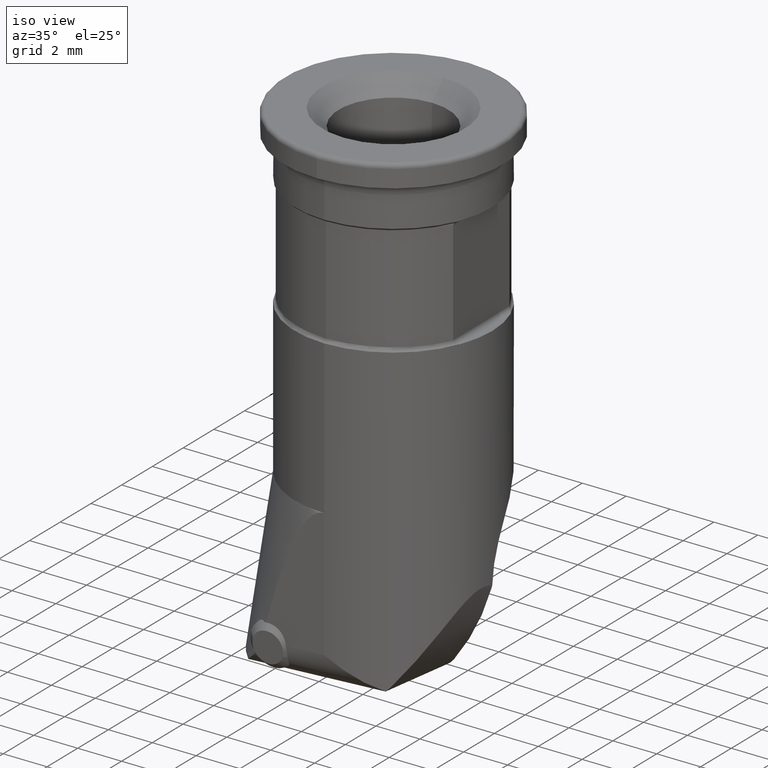
[diagram: clean part render]
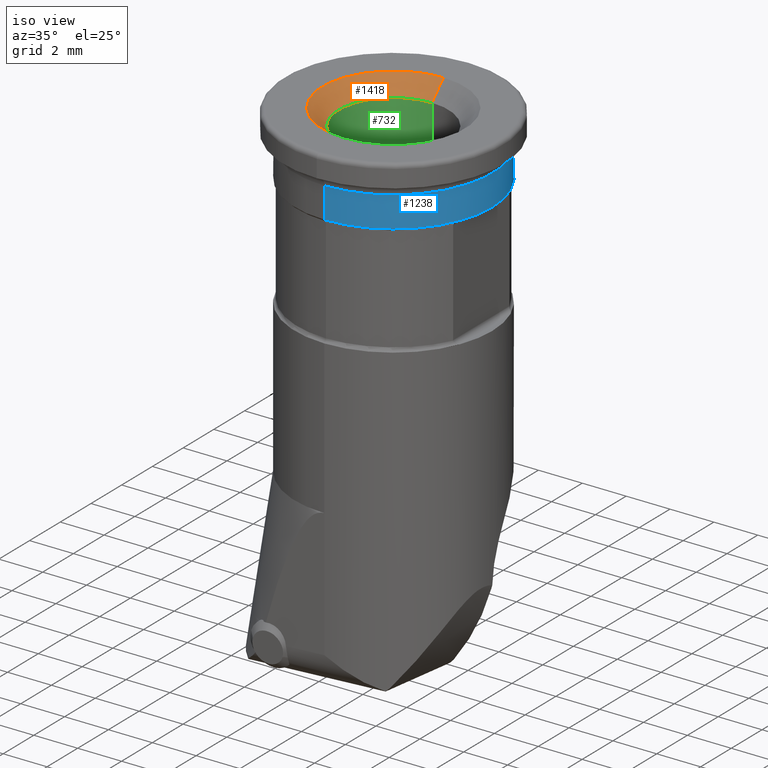
[diagram: same view with three faces highlighted in distinct colors, each labeled with its STEP entity id]
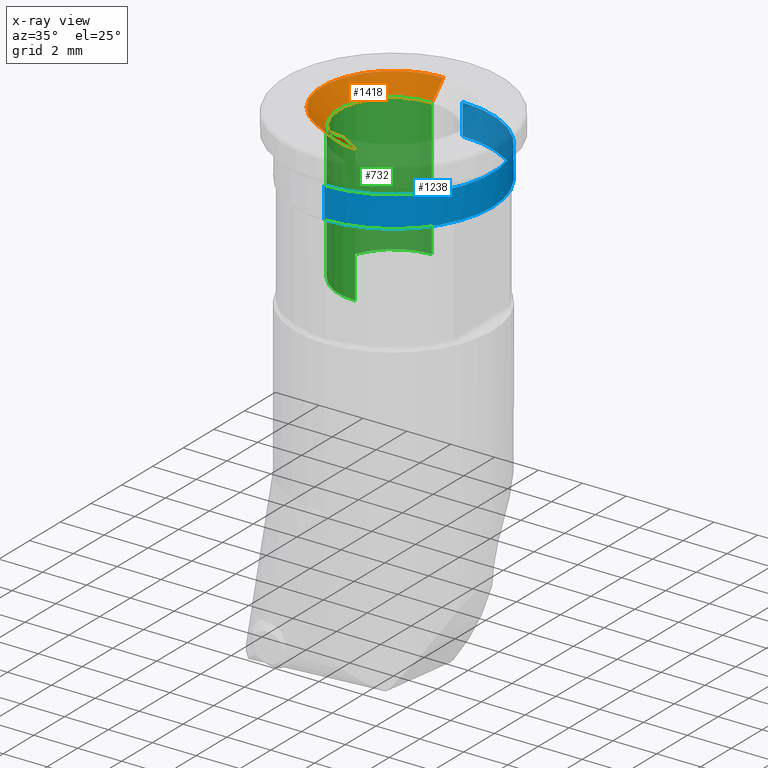
[diagram: x-ray of the same camera — body ghosted, the three highlighted faces saturated]
A machine part, iso view with three faces highlighted in distinct colors.
The next image is the same camera in x-ray (body ghosted, the three faces saturated) — at least one of them is partly hidden behind the body in this view.
Their STEP definitions:

[orange] entity #1418 — the highlighted conical surface has half-angle 45 deg.
#694=VERTEX_POINT('NONE',#1948);
#888=VERTEX_POINT('NONE',#2165);
#1174=EDGE_CURVE('NONE',#1772,#694,#2480,.T.);
#1384=EDGE_CURVE('NONE',#1772,#888,#2711,.T.);
#1418=ADVANCED_FACE('NONE',(#2748),#2749,.F.);
#1460=EDGE_CURVE('NONE',#1804,#888,#2794,.T.);
#1772=VERTEX_POINT('NONE',#3143);
#1776=EDGE_CURVE('NONE',#694,#1804,#3148,.T.);
#1804=VERTEX_POINT('NONE',#3181);
#1948=CARTESIAN_POINT('',(0.0,-2.5,-0.749999999999997));
#2165=CARTESIAN_POINT('',(3.9801020972289E-016,3.25,0.0));
#2480=CIRCLE('',#5001,2.5);
#2711=LINE('',#5447,#5448);
#2748=FACE_OUTER_BOUND('',#5582,.T.);
#2749=CONICAL_SURFACE('',#5583,2.5,0.78539816339745);
#2794=CIRCLE('',#5641,3.25);
#3143=CARTESIAN_POINT('',(3.52085954754864E-016,2.5,-0.749999999999997));
#3148=LINE('',#6410,#6411);
#3181=CARTESIAN_POINT('',(0.0,-3.25,0.0));
#5001=AXIS2_PLACEMENT_3D('',#7257,#7258,#7259);
#5447=CARTESIAN_POINT('',(3.06161699786838E-016,2.5,-0.749999999999997));
#5448=VECTOR('',#7527,1000.0);
#5582=EDGE_LOOP('',(#7573,#7574,#7575,#7576));
#5583=AXIS2_PLACEMENT_3D('',#7577,#7578,#7579);
#5641=AXIS2_PLACEMENT_3D('',#7621,#7622,#7623);
#6410=CARTESIAN_POINT('',(0.0,-2.5,-0.749999999999997));
#6411=VECTOR('',#8082,1000.0);
#7257=CARTESIAN_POINT('',(0.0,0.0,-0.749999999999997));
#7258=DIRECTION('',(-0.0,0.0,1.0));
#7259=DIRECTION('',(0.0,-1.0,0.0));
#7527=DIRECTION('',(8.65956056235495E-017,0.707106781186549,0.707106781186546));
#7573=ORIENTED_EDGE('',*,*,#1174,.F.);
#7574=ORIENTED_EDGE('',*,*,#1384,.T.);
#7575=ORIENTED_EDGE('',*,*,#1460,.F.);
#7576=ORIENTED_EDGE('',*,*,#1776,.F.);
#7577=CARTESIAN_POINT('',(0.0,0.0,-0.749999999999997));
#7578=DIRECTION('',(-0.0,-0.0,1.0));
#7579=DIRECTION('',(0.0,-1.0,0.0));
#7621=CARTESIAN_POINT('',(0.0,0.0,0.0));
#7622=DIRECTION('',(0.0,0.0,-1.0));
#7623=DIRECTION('',(0.0,-1.0,0.0));
#8082=DIRECTION('',(0.0,-0.707106781186549,0.707106781186546));

[blue] entity #1238 — the highlighted cylindrical surface (partial cylindrical patch) has radius 4.5 mm, axis along (-0, -0, 1).
#712=VERTEX_POINT('NONE',#1969);
#874=VERTEX_POINT('NONE',#2151);
#956=VERTEX_POINT('NONE',#2240);
#1140=EDGE_CURVE('NONE',#1284,#712,#2443,.T.);
#1160=EDGE_CURVE('NONE',#712,#874,#2465,.T.);
#1176=EDGE_CURVE('NONE',#874,#1286,#2482,.T.);
#1238=ADVANCED_FACE('NONE',(#2552),#2553,.T.);
#1274=EDGE_CURVE('NONE',#1412,#1284,#2590,.F.);
#1284=VERTEX_POINT('NONE',#2600);
#1286=VERTEX_POINT('NONE',#2602);
#1368=EDGE_CURVE('NONE',#956,#1286,#2691,.T.);
#1410=EDGE_CURVE('NONE',#956,#1412,#2739,.T.);
#1412=VERTEX_POINT('NONE',#2741);
#1969=CARTESIAN_POINT('',(5.51091059616309E-016,4.5,-2.9));
#2151=CARTESIAN_POINT('',(5.51091059616309E-016,4.5,-1.5));
#2240=CARTESIAN_POINT('',(0.0,-4.5,-2.9));
#2443=CIRCLE('',#4950,4.5);
#2465=LINE('',#4981,#4982);
#2482=CIRCLE('',#5004,4.5);
#2552=FACE_OUTER_BOUND('',#5124,.T.);
#2553=CYLINDRICAL_SURFACE('',#5125,4.5);
#2590=CIRCLE('',#5201,4.5);
#2600=CARTESIAN_POINT('',(4.2,1.61554944214035,-2.9));
#2602=CARTESIAN_POINT('',(0.0,-4.5,-1.5));
#2691=LINE('',#5388,#5389);
#2739=CIRCLE('',#5573,4.5);
#2741=CARTESIAN_POINT('',(4.2,-1.61554944214035,-2.9));
#4950=AXIS2_PLACEMENT_3D('',#7209,#7210,#7211);
#4981=CARTESIAN_POINT('',(5.51091059616309E-016,4.5,3.67315689981097));
#4982=VECTOR('',#7236,1000.0);
#5004=AXIS2_PLACEMENT_3D('',#7260,#7261,#7262);
#5124=EDGE_LOOP('',(#7364,#7365,#7366,#7367,#7368,#7369));
#5125=AXIS2_PLACEMENT_3D('',#7370,#7371,#7372);
#5201=AXIS2_PLACEMENT_3D('',#7394,#7395,#7396);
#5388=CARTESIAN_POINT('',(0.0,-4.5,3.67315689981097));
#5389=VECTOR('',#7497,1000.0);
#5573=AXIS2_PLACEMENT_3D('',#7561,#7562,#7563);
#7209=CARTESIAN_POINT('',(0.0,0.0,-2.9));
#7210=DIRECTION('',(-0.0,0.0,1.0));
#7211=DIRECTION('',(0.0,-1.0,0.0));
#7236=DIRECTION('',(-0.0,0.0,1.0));
#7260=CARTESIAN_POINT('',(0.0,0.0,-1.5));
#7261=DIRECTION('',(0.0,0.0,-1.0));
#7262=DIRECTION('',(0.0,-1.0,0.0));
#7364=ORIENTED_EDGE('',*,*,#1140,.T.);
#7365=ORIENTED_EDGE('',*,*,#1160,.T.);
#7366=ORIENTED_EDGE('',*,*,#1176,.T.);
#7367=ORIENTED_EDGE('',*,*,#1368,.F.);
#7368=ORIENTED_EDGE('',*,*,#1410,.T.);
#7369=ORIENTED_EDGE('',*,*,#1274,.T.);
#7370=CARTESIAN_POINT('',(0.0,0.0,3.67315689981097));
#7371=DIRECTION('',(-0.0,-0.0,1.0));
#7372=DIRECTION('',(0.0,-1.0,0.0));
#7394=CARTESIAN_POINT('',(0.0,0.0,-2.9));
#7395=DIRECTION('',(0.0,0.0,-1.0));
#7396=DIRECTION('',(0.0,-1.0,0.0));
#7497=DIRECTION('',(-0.0,0.0,1.0));
#7561=CARTESIAN_POINT('',(0.0,0.0,-2.9));
#7562=DIRECTION('',(-0.0,0.0,1.0));
#7563=DIRECTION('',(0.0,-1.0,0.0));

[green] entity #732 — the highlighted cylindrical surface (partial cylindrical patch) has radius 2.5 mm, axis along (-0, -0, 1).
#694=VERTEX_POINT('NONE',#1948);
#732=ADVANCED_FACE('NONE',(#1992),#1993,.F.);
#972=EDGE_CURVE('NONE',#1420,#694,#2257,.T.);
#1008=EDGE_CURVE('NONE',#1222,#1420,#2294,.T.);
#1174=EDGE_CURVE('NONE',#1772,#694,#2480,.T.);
#1222=VERTEX_POINT('NONE',#2531);
#1288=EDGE_CURVE('NONE',#1222,#1772,#2604,.T.);
#1420=VERTEX_POINT('NONE',#2751);
#1772=VERTEX_POINT('NONE',#3143);
#1948=CARTESIAN_POINT('',(0.0,-2.5,-0.749999999999997));
#1992=FACE_OUTER_BOUND('',#3435,.T.);
#1993=CYLINDRICAL_SURFACE('',#3436,2.5);
#2257=LINE('',#4374,#4375);
#2294=CIRCLE('',#4453,2.5);
#2480=CIRCLE('',#5001,2.5);
#2531=CARTESIAN_POINT('',(3.06161699786838E-016,2.5,-7.0));
#2604=LINE('',#5217,#5218);
#2751=CARTESIAN_POINT('',(0.0,-2.5,-7.0));
#3143=CARTESIAN_POINT('',(3.52085954754864E-016,2.5,-0.749999999999997));
#3435=EDGE_LOOP('',(#6696,#6697,#6698,#6699));
#3436=AXIS2_PLACEMENT_3D('',#6700,#6701,#6702);
#4374=CARTESIAN_POINT('',(0.0,-2.5,2.046307376532));
#4375=VECTOR('',#6998,1000.0);
#4453=AXIS2_PLACEMENT_3D('',#7024,#7025,#7026);
#5001=AXIS2_PLACEMENT_3D('',#7257,#7258,#7259);
#5217=CARTESIAN_POINT('',(3.06161699786838E-016,2.5,2.046307376532));
#5218=VECTOR('',#7399,1000.0);
#6696=ORIENTED_EDGE('',*,*,#1008,.F.);
#6697=ORIENTED_EDGE('',*,*,#1288,.T.);
#6698=ORIENTED_EDGE('',*,*,#1174,.T.);
#6699=ORIENTED_EDGE('',*,*,#972,.F.);
#6700=CARTESIAN_POINT('',(0.0,0.0,2.046307376532));
#6701=DIRECTION('',(-0.0,-0.0,1.0));
#6702=DIRECTION('',(0.0,-1.0,0.0));
#6998=DIRECTION('',(-0.0,0.0,1.0));
#7024=CARTESIAN_POINT('',(0.0,0.0,-7.0));
#7025=DIRECTION('',(-0.0,0.0,1.0));
#7026=DIRECTION('',(0.0,-1.0,0.0));
#7257=CARTESIAN_POINT('',(0.0,0.0,-0.749999999999997));
#7258=DIRECTION('',(-0.0,0.0,1.0));
#7259=DIRECTION('',(0.0,-1.0,0.0));
#7399=DIRECTION('',(-0.0,0.0,1.0));